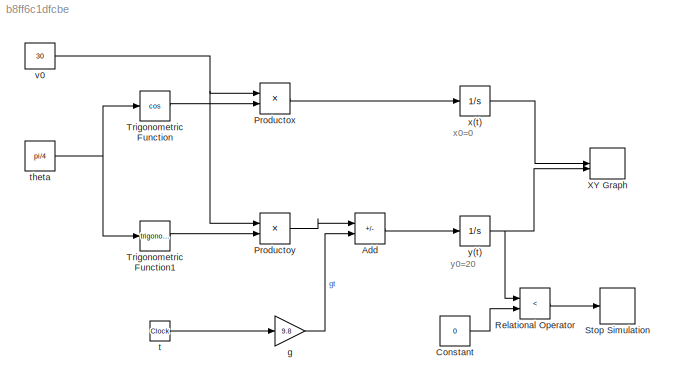
MODEL slx_b8ff6c1dfcbe
KIND model
CONFIG AbsTol = auto
CONFIG EnableMultiTasking = off
CONFIG FixedStep = auto
CONFIG MaxStep = auto
CONFIG MinStep = auto
CONFIG RelTol = 1e-3
CONFIG SampleTimeConstraint = Unconstrained
CONFIG SolverName = ode4
CONFIG StartTime = 0.0
CONFIG StopTime = 10.0
BLOCK [Sum] Add
  IconShape = rectangular
  Inputs = +-
BLOCK [Constant] Constant
  Value = 0
BLOCK [Product] Productox
BLOCK [Product] Productoy
BLOCK [RelationalOperator] Relational Operator
  InputSameDT = off
  Operator = <
  OutDataTypeStr = boolean
  RndMeth = Simplest
BLOCK [Stop] Stop Simulation
BLOCK [Trigonometry] Trigonometric Function
  Operator = cos
BLOCK [Trigonometry] Trigonometric Function1
BLOCK [Record] XY Graph
  CompatibilityTag = XY
  FileSettingsInternal = {"entries":[{"content":{"excelSettings":{"content":{},"type":"Streamout.ExcelSettings"}},"type":"Streamout.FileSettingStorage","uuid":""}],"packageUris":["http:\/\/schema.mathworks.com\/mf0\/streamout_blocks\/R2020a"],"version":"1.0"}
  Layout = [1 1]
  SignalsInternal = {"entries":[{"content":{"signals":[{"content":{"blockPath":[],"dimensions":[1],"domain":"","lineColor":"#a2142f","plots":[ 1 ],"port":1,"sid":[""],"signalID":1,"signalName":"x(t)"},"type":"RecordBlkView.Signal","uuid":""},{"content":{"blockPath":[],"dimensions":[1],"domain":"","lineColor":"#139fff","plots":[ 1 ],"port":2,"sid":[""],"signalID":2,"signalName":"y(t)"},"type":"RecordBlkView.Signal","u...<+154ch>
  VisualizationBindings = {"xyplotplugin":{"info":[{"series":[{"bindingParametersList":[{"parameter":"X-Axis","signalID":1,"signalName":"x(t)"},{"parameter":"Y-Axis","signalID":2,"signalName":"y(t)"}],"seriesID":0}],"subplotID":1}]}}
BLOCK [Gain] g
  Gain = 9.8
BLOCK [Clock] t
BLOCK [Constant] theta
  Value = pi/4
BLOCK [Constant] v0
  Value = 30
BLOCK [Integrator] x(t)
BLOCK [Integrator] y(t)
  InitialCondition = 20
ANNOTATION (root): x0=0
ANNOTATION (root): y0=20
LINE Add:1 -> y(t):1
LINE Constant:1 -> Relational Operator:2
LINE Productox:1 -> x(t):1
LINE Productoy:1 -> Add:1
LINE Relational Operator:1 -> Stop Simulation:1
LINE Trigonometric Function1:1 -> Productoy:2
LINE Trigonometric Function:1 -> Productox:2
LINE g:1 -> Add:2
LINE t:1 -> g:1
NET theta:1 -> Trigonometric Function1:1, Trigonometric Function:1
NET v0:1 -> Productox:1, Productoy:1
LINE x(t):1 -> XY Graph:1
NET y(t):1 -> Relational Operator:1, XY Graph:2
note: NET lines group one-source signal fan-out (src -> all destinations, sorted); 1:1 wires keep LINE
